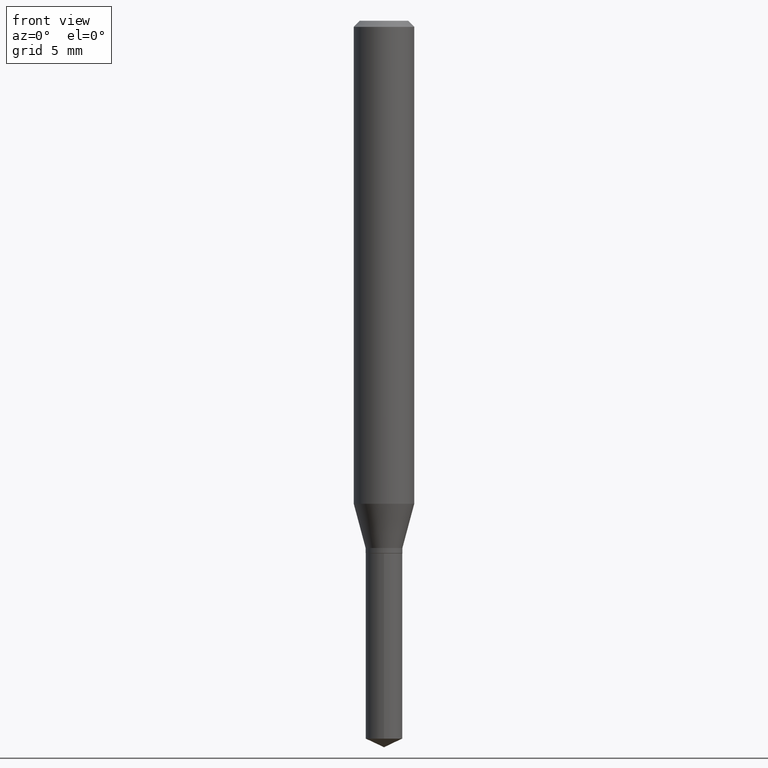
[diagram: clean part render]
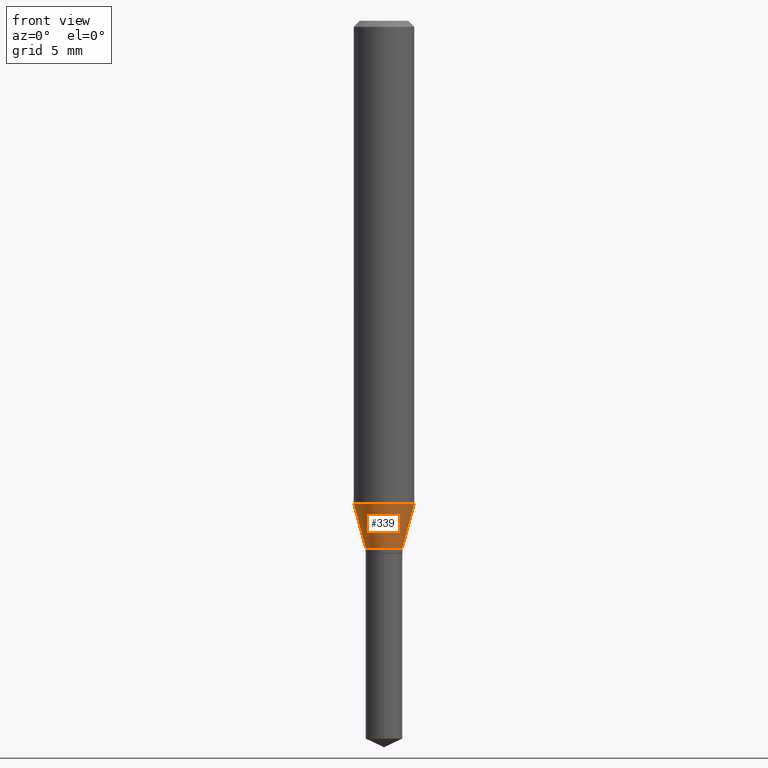
[diagram: same view with one face highlighted and labeled with its STEP entity id]
A machine part, front view. The second image highlights one B-rep face of the part: STEP entity #339.
In plain terms, the highlighted conical surface has half-angle 15 deg.
Its self-contained STEP definition (entity closure, byte-faithful):
#4 = LINE ( 'NONE', #395, #373 ) ;
#34 = CARTESIAN_POINT ( 'NONE',  ( -0.06250000000000012490, -3.037492924733674885E-15, -0.9971647552145623816 ) ) ;
#38 = DIRECTION ( 'NONE',  ( 0.2588190451025213501, 1.565188264969621968E-15, 0.9659258262890682012 ) ) ;
#46 = ORIENTED_EDGE ( 'NONE', *, *, #122, .T. ) ;
#75 = CARTESIAN_POINT ( 'NONE',  ( 2.438535303504449813E-29, -3.481582134583737895E-15, -0.9971647552145623816 ) ) ;
#84 = DIRECTION ( 'NONE',  ( -2.445468806185136597E-29, 3.491481338843145583E-15, 1.000000000000000000 ) ) ;
#89 = ORIENTED_EDGE ( 'NONE', *, *, #422, .F. ) ;
#92 = CARTESIAN_POINT ( 'NONE',  ( 0.03800000000000000600, -4.066179167216727040E-15, -1.088600000000000012 ) ) ;
#105 = CIRCLE ( 'NONE', #446, 0.06250000000000012490 ) ;
#111 = VERTEX_POINT ( 'NONE', #34 ) ;
#122 = EDGE_CURVE ( 'NONE', #463, #360, #489, .T. ) ;
#142 = CARTESIAN_POINT ( 'NONE',  ( 0.06250000000000012490, -3.918017301939130748E-15, -0.9971647552145623816 ) ) ;
#170 = AXIS2_PLACEMENT_3D ( 'NONE', #383, #84, #197 ) ;
#190 = DIRECTION ( 'NONE',  ( -2.445468806185136597E-29, 3.491481338843145583E-15, 1.000000000000000000 ) ) ;
#191 = EDGE_CURVE ( 'NONE', #352, #463, #290, .T. ) ;
#197 = DIRECTION ( 'NONE',  ( 1.000000000000000000, -6.982962677686267499E-15, 0.000000000000000000 ) ) ;
#203 = CARTESIAN_POINT ( 'NONE',  ( 2.662137342413139764E-29, -3.800826585464649031E-15, -1.088600000000000012 ) ) ;
#290 = CIRCLE ( 'NONE', #321, 0.03800000000000000600 ) ;
#294 = EDGE_LOOP ( 'NONE', ( #89, #404, #46, #326 ) ) ;
#321 = AXIS2_PLACEMENT_3D ( 'NONE', #203, #190, #408 ) ;
#326 = ORIENTED_EDGE ( 'NONE', *, *, #342, .F. ) ;
#339 = ADVANCED_FACE ( 'NONE', ( #343 ), #459, .T. ) ;
#342 = EDGE_CURVE ( 'NONE', #111, #360, #105, .T. ) ;
#343 = FACE_OUTER_BOUND ( 'NONE', #294, .T. ) ;
#352 = VERTEX_POINT ( 'NONE', #441 ) ;
#354 = VECTOR ( 'NONE', #38, 39.37007874015747433 ) ;
#360 = VERTEX_POINT ( 'NONE', #142 ) ;
#373 = VECTOR ( 'NONE', #464, 39.37007874015747433 ) ;
#380 = CARTESIAN_POINT ( 'NONE',  ( 0.03800000000000000600, -4.066179167216727040E-15, -1.088600000000000012 ) ) ;
#383 = CARTESIAN_POINT ( 'NONE',  ( 2.662137342413139764E-29, -3.800826585464649031E-15, -1.088600000000000012 ) ) ;
#395 = CARTESIAN_POINT ( 'NONE',  ( -0.03800000000000000600, -3.530820345875810721E-15, -1.088600000000000012 ) ) ;
#404 = ORIENTED_EDGE ( 'NONE', *, *, #191, .T. ) ;
#408 = DIRECTION ( 'NONE',  ( 1.000000000000000000, -6.982962677686267499E-15, 0.000000000000000000 ) ) ;
#422 = EDGE_CURVE ( 'NONE', #352, #111, #4, .T. ) ;
#433 = DIRECTION ( 'NONE',  ( -2.445468806185136597E-29, 3.491481338843145583E-15, 1.000000000000000000 ) ) ;
#441 = CARTESIAN_POINT ( 'NONE',  ( -0.03800000000000000600, -3.549848919172505504E-15, -1.088600000000000012 ) ) ;
#446 = AXIS2_PLACEMENT_3D ( 'NONE', #75, #433, #460 ) ;
#459 = CONICAL_SURFACE ( 'NONE', #170, 0.03800000000000000600, 0.2617993877991500740 ) ;
#460 = DIRECTION ( 'NONE',  ( 1.000000000000000000, -6.982962677686264344E-15, 0.000000000000000000 ) ) ;
#463 = VERTEX_POINT ( 'NONE', #92 ) ;
#464 = DIRECTION ( 'NONE',  ( -0.2588190451025213501, 5.211531920934551042E-15, 0.9659258262890682012 ) ) ;
#489 = LINE ( 'NONE', #380, #354 ) ;